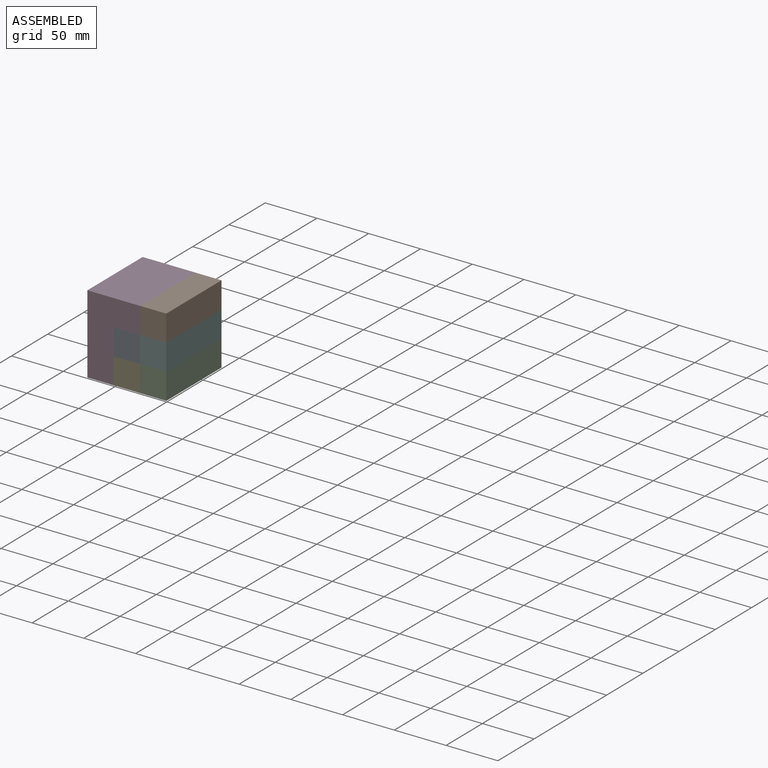
[diagram: assembled view]
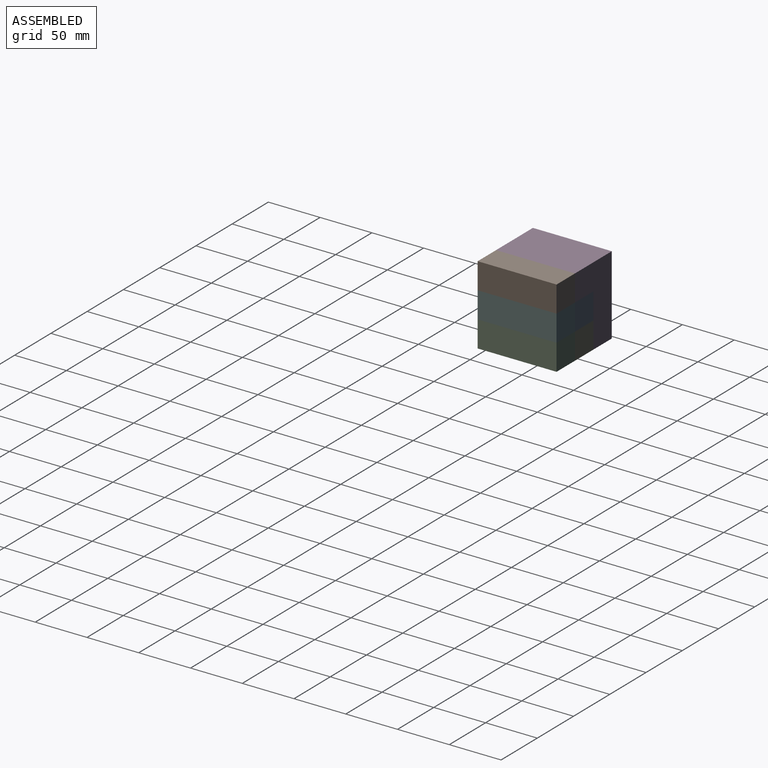
[diagram: assembled view, second angle]
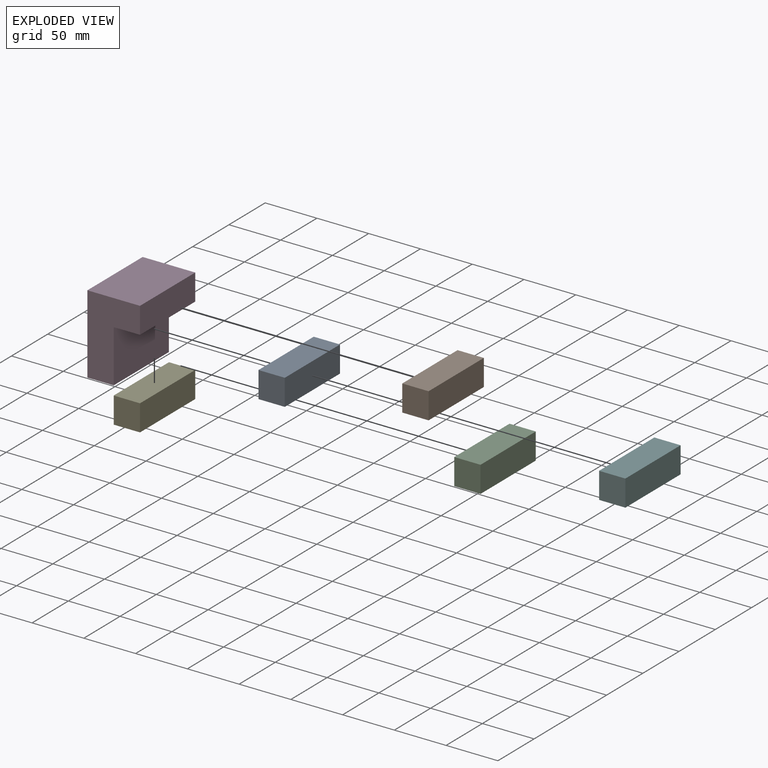
[diagram: exploded view]
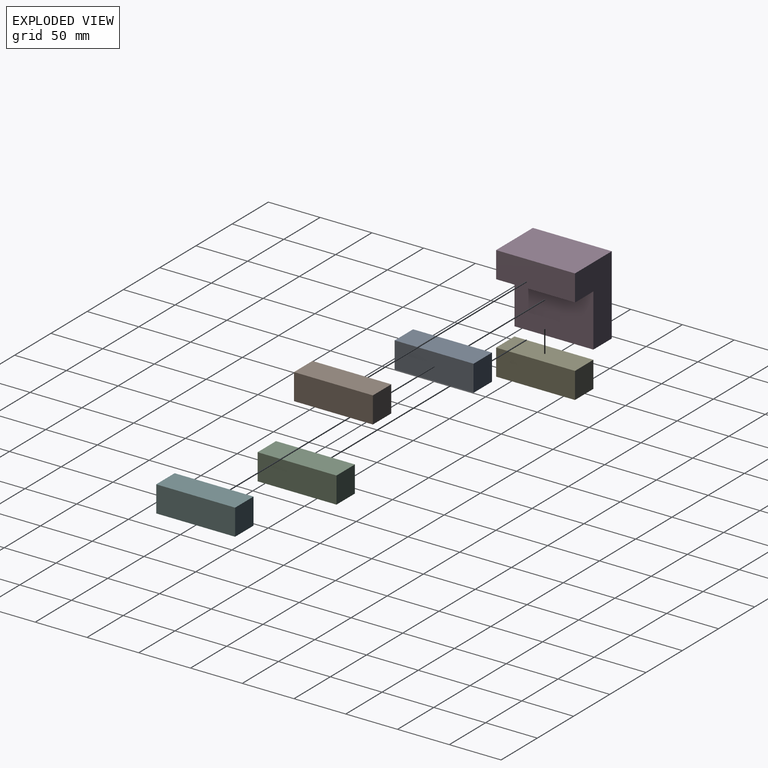
[diagram: exploded view, second angle]
ASSEMBLY  parts=6 mates=8
PART A: 6 faces, bbox 25.4x76.2x25.4 mm
  f0: plane 76.2x25.4mm, normal (-1,0,0), area 1935.5mm2, adj f1,f3,f4,f5
  f1: plane 76.2x25.4mm, normal (0,0,-1), area 1935.5mm2, adj f0,f2,f4,f5
  f2: plane 76.2x25.4mm, normal (1,0,0), area 1935.5mm2, adj f1,f3,f4,f5
  f3: plane 76.2x25.4mm, normal (0,0,1), area 1935.5mm2, adj f0,f2,f4,f5
  f4: plane 25.4x25.4mm, normal (0,-1,0), area 645.2mm2, adj f0,f1,f2,f3
  f5: plane 25.4x25.4mm, normal (0,1,0), area 645.2mm2, adj f0,f1,f2,f3
PART B: 6 faces, bbox 25.4x76.2x25.4 mm
  f0: plane 76.2x25.4mm, normal (-1,0,0), area 1935.5mm2, adj f1,f3,f4,f5
  f1: plane 76.2x25.4mm, normal (0,0,-1), area 1935.5mm2, adj f0,f2,f4,f5
  f2: plane 76.2x25.4mm, normal (1,0,0), area 1935.5mm2, adj f1,f3,f4,f5
  f3: plane 76.2x25.4mm, normal (0,0,1), area 1935.5mm2, adj f0,f2,f4,f5
  f4: plane 25.4x25.4mm, normal (0,-1,0), area 645.2mm2, adj f0,f1,f2,f3
  f5: plane 25.4x25.4mm, normal (0,1,0), area 645.2mm2, adj f0,f1,f2,f3
PART C: same geometry as A
PART D: 8 faces, bbox 50.8x76.2x76.2 mm
  f0: plane 76.2x50.8mm, normal (0,0,1), area 3871mm2, adj f1,f5,f6,f7
  f1: plane 76.2x76.2mm, normal (-1,0,0), area 5806.4mm2, adj f0,f2,f6,f7
  f2: plane 76.2x25.4mm, normal (0,0,-1), area 1935.5mm2, adj f1,f3,f6,f7
  f3: plane 76.2x50.8mm, normal (1,0,0), area 3871mm2, adj f2,f4,f6,f7
  f4: plane 76.2x25.4mm, normal (0,0,-1), area 1935.5mm2, adj f3,f5,f6,f7
  f5: plane 76.2x25.4mm, normal (1,0,0), area 1935.5mm2, adj f0,f4,f6,f7
  f6: plane 76.2x50.8mm, normal (0,-1,0), area 2580.6mm2, adj f0,f1,f2,f3,f4,f5
  f7: plane 76.2x50.8mm, normal (0,1,0), area 2580.6mm2, adj f0,f1,f2,f3,f4,f5
PART E: 6 faces, bbox 25.4x76.2x25.4 mm
  f0: plane 76.2x25.4mm, normal (-1,0,0), area 1935.5mm2, adj f1,f3,f4,f5
  f1: plane 76.2x25.4mm, normal (0,0,-1), area 1935.5mm2, adj f0,f2,f4,f5
  f2: plane 76.2x25.4mm, normal (1,0,0), area 1935.5mm2, adj f1,f3,f4,f5
  f3: plane 76.2x25.4mm, normal (0,0,1), area 1935.5mm2, adj f0,f2,f4,f5
  f4: plane 25.4x25.4mm, normal (0,-1,0), area 645.2mm2, adj f0,f1,f2,f3
  f5: plane 25.4x25.4mm, normal (0,1,0), area 645.2mm2, adj f0,f1,f2,f3
PART F: 6 faces, bbox 25.4x76.2x25.4 mm
  f0: plane 76.2x25.4mm, normal (-1,0,0), area 1935.5mm2, adj f1,f3,f4,f5
  f1: plane 76.2x25.4mm, normal (0,0,-1), area 1935.5mm2, adj f0,f2,f4,f5
  f2: plane 76.2x25.4mm, normal (1,0,0), area 1935.5mm2, adj f1,f3,f4,f5
  f3: plane 76.2x25.4mm, normal (0,0,1), area 1935.5mm2, adj f0,f2,f4,f5
  f4: plane 25.4x25.4mm, normal (0,-1,0), area 645.2mm2, adj f0,f1,f2,f3
  f5: plane 25.4x25.4mm, normal (0,1,0), area 645.2mm2, adj f0,f1,f2,f3
PLACE A t=(63.34,-36.19,-5.32)mm
PLACE B t=(89.01,-36.19,119.22)mm
PLACE C t=(88.74,-36.19,-30.72)mm
PLACE D t=(-32.93,-36.19,-0.41)mm
PLACE E t=(53.78,-36.19,11.06)mm
PLACE F t=(8.44,-36.19,74.7)mm
MATE planar C.f0 <-> E.f2  axis (-1,0,0) through (17.87,-74.29,12.29)mm
MATE planar A.f3 <-> D.f4  axis (0,0,1) through (5.17,-74.29,50.39)mm
MATE planar E.f3 <-> A.f1  axis (0,0,1) through (5.17,-74.29,24.99)mm
MATE planar D.f3 <-> A.f0  axis (1,0,0) through (-7.53,-74.29,24.99)mm
MATE planar F.f0 <-> A.f2  axis (-1,0,0) through (17.87,-74.29,37.69)mm
MATE planar B.f0 <-> D.f5  axis (-1,0,0) through (17.87,-74.29,63.09)mm
MATE planar A.f4 <-> D.f6  axis (0,-1,0) through (5.17,-112.39,37.69)mm
MATE planar E.f0 <-> D.f3  axis (-1,0,0) through (-7.53,-74.29,12.29)mm
